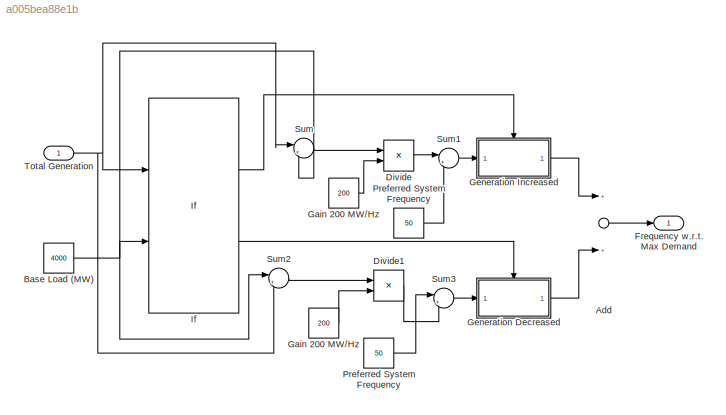
MODEL slx_a005bea88e1b
KIND model
BLOCK [Sum] Add
  InputSameDT = off
  OutDataTypeStr = Inherit: Inherit via internal rule
  Ports = [2, 1]
  SaturateOnIntegerOverflow = off
BLOCK [Constant] Base Load (MW)
  Value = 4000
BLOCK [Product] Divide
  InputSameDT = off
  Inputs = */
  OutDataTypeStr = Inherit: Inherit via internal rule
  Ports = [2, 1]
  RndMeth = Floor
  SaturateOnIntegerOverflow = off
BLOCK [Product] Divide1
  InputSameDT = off
  Inputs = */
  OutDataTypeStr = Inherit: Inherit via internal rule
  Ports = [2, 1]
  RndMeth = Floor
  SaturateOnIntegerOverflow = off
BLOCK [Outport] Frequency w.r.t. Max Demand
  IconDisplay = Port number
BLOCK [Constant] Gain 200 MW//Hz
  Value = 200
BLOCK [Constant] Gain 200 MW//Hz 
  Value = 200
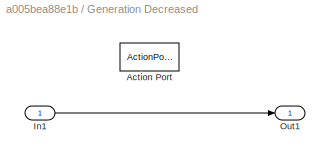
BLOCK [SubSystem] Generation Decreased
  FunctionWithSeparateData = off
  MaskHideContents = off
  MinAlgLoopOccurrences = off
  Opaque = off
  Ports = [1, 1, 0, 0, 0, 0, 0, 1]
  PropExecContextOutsideSubsystem = off
  RTWSystemCode = Auto
  RequestExecContextInheritance = off
  TreatAsAtomicUnit = on
BLOCK [ActionPort] Generation Decreased/Action Port
  ActionType = elseif
BLOCK [Inport] Generation Decreased/In1
  IconDisplay = Port number
BLOCK [Outport] Generation Decreased/Out1
  IconDisplay = Port number
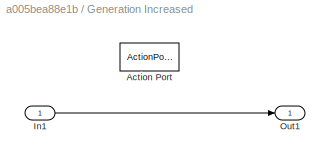
BLOCK [SubSystem] Generation Increased
  FunctionWithSeparateData = off
  MaskHideContents = off
  MinAlgLoopOccurrences = off
  Opaque = off
  Ports = [1, 1, 0, 0, 0, 0, 0, 1]
  PropExecContextOutsideSubsystem = off
  RTWSystemCode = Auto
  RequestExecContextInheritance = off
  TreatAsAtomicUnit = on
BLOCK [ActionPort] Generation Increased/Action Port
  ActionType = then
BLOCK [Inport] Generation Increased/In1
  IconDisplay = Port number
BLOCK [Outport] Generation Increased/Out1
  IconDisplay = Port number
BLOCK [If] If
  ElseIfExpressions = u1<u2
  IfExpression = u1>u2
  NumInputs = 2
  Ports = [2, 2]
  ShowElse = off
BLOCK [Constant] Preferred System Frequency
  Value = 50
BLOCK [Constant] Preferred System Frequency 
  Value = 50
BLOCK [Sum] Sum
  IconShape = round
  InputSameDT = off
  Inputs = |+-
  OutDataTypeStr = Inherit: Inherit via internal rule
  Ports = [2, 1]
  SaturateOnIntegerOverflow = off
BLOCK [Sum] Sum1
  IconShape = round
  InputSameDT = off
  Inputs = |++
  OutDataTypeStr = Inherit: Inherit via internal rule
  Ports = [2, 1]
  SaturateOnIntegerOverflow = off
BLOCK [Sum] Sum2
  IconShape = round
  InputSameDT = off
  Inputs = |+-
  OutDataTypeStr = Inherit: Inherit via internal rule
  Ports = [2, 1]
  SaturateOnIntegerOverflow = off
BLOCK [Sum] Sum3
  IconShape = round
  InputSameDT = off
  Inputs = |+-
  OutDataTypeStr = Inherit: Inherit via internal rule
  Ports = [2, 1]
  SaturateOnIntegerOverflow = off
BLOCK [Inport] Total Generation
  IconDisplay = Port number
LINE Add:1 -> Frequency w.r.t. Max Demand:1
NET Base Load (MW):1 -> If:2, Sum2:1, Sum:2
LINE Divide1:1 -> Sum3:2
LINE Divide:1 -> Sum1:1
LINE Gain 200 MW//Hz :1 -> Divide1:2
LINE Gain 200 MW//Hz:1 -> Divide:2
LINE Generation Decreased/In1:1 -> Generation Decreased/Out1:1
LINE Generation Decreased:1 -> Add:2
LINE Generation Increased/In1:1 -> Generation Increased/Out1:1
LINE Generation Increased:1 -> Add:1
LINE If:1 -> Generation Increased:ifaction
LINE If:2 -> Generation Decreased:ifaction
LINE Preferred System Frequency :1 -> Sum3:1
LINE Preferred System Frequency:1 -> Sum1:2
LINE Sum1:1 -> Generation Increased:1
LINE Sum2:1 -> Divide1:1
LINE Sum3:1 -> Generation Decreased:1
LINE Sum:1 -> Divide:1
NET Total Generation:1 -> If:1, Sum2:2, Sum:1
note: NET lines group one-source signal fan-out (src -> all destinations, sorted); 1:1 wires keep LINE
